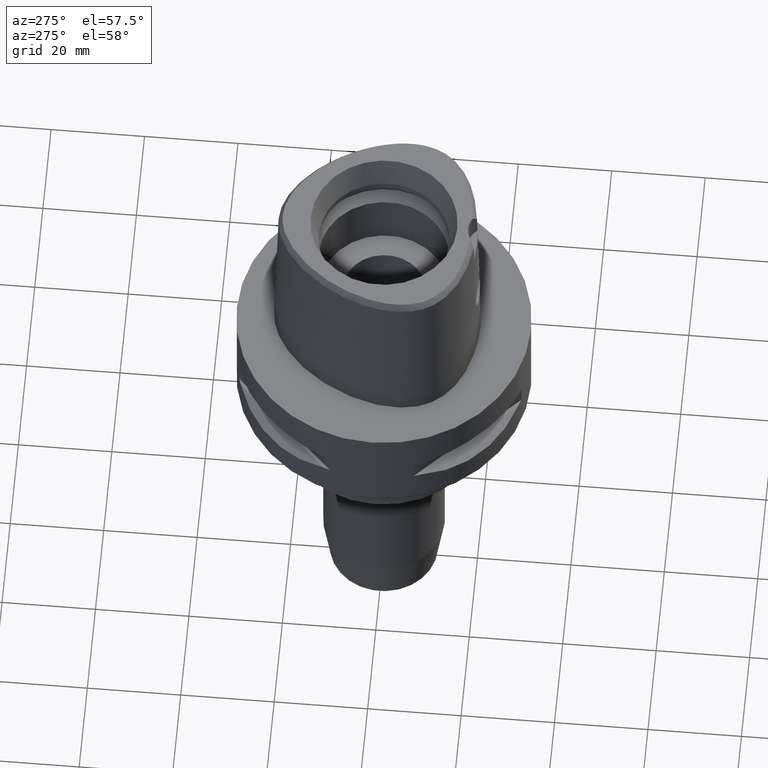
[diagram: clean part render]
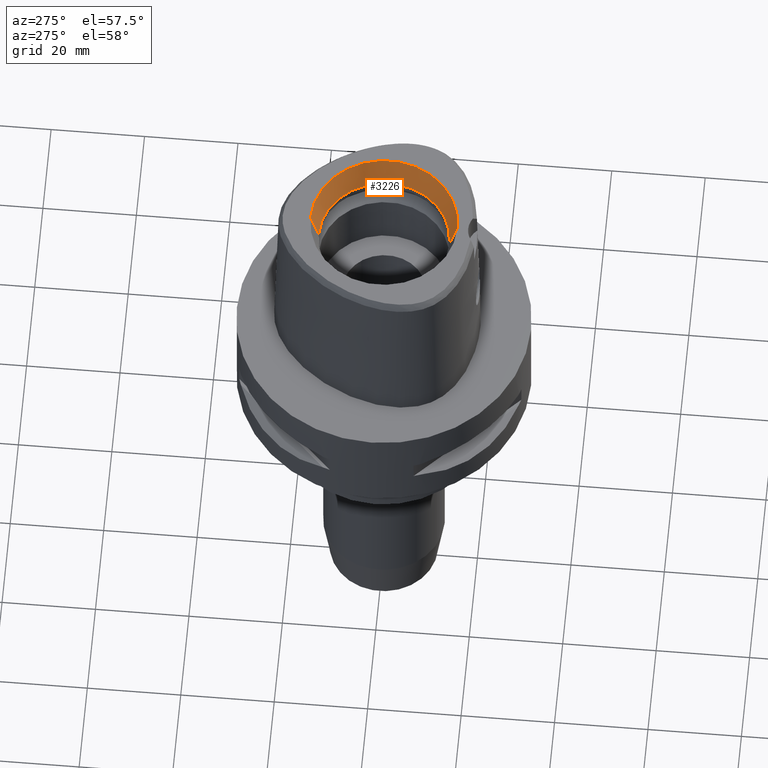
[diagram: same view with one face highlighted and labeled with its STEP entity id]
A machine part, auxiliary view. The second image highlights one B-rep face of the part: STEP entity #3226.
In plain terms, the highlighted conical surface has half-angle 15 deg.
Its self-contained STEP definition (entity closure, byte-faithful):
#128=CARTESIAN_POINT('',(0.E0,0.E0,3.8E1));
#129=DIRECTION('',(0.E0,0.E0,1.E0));
#130=DIRECTION('',(0.E0,-1.E0,0.E0));
#131=AXIS2_PLACEMENT_3D('',#128,#129,#130);
#1228=DIRECTION('',(0.E0,-2.588190451026E-1,9.659258262891E-1));
#1229=VECTOR('',#1228,6.625767554625E0);
#1230=CARTESIAN_POINT('',(0.E0,-1.4E1,3.16E1));
#1231=LINE('',#1230,#1229);
#1235=CARTESIAN_POINT('',(0.E0,0.E0,3.16E1));
#1236=DIRECTION('',(0.E0,0.E0,1.E0));
#1237=DIRECTION('',(0.E0,-1.E0,0.E0));
#1238=AXIS2_PLACEMENT_3D('',#1235,#1236,#1237);
#1243=DIRECTION('',(0.E0,2.588190451026E-1,9.659258262891E-1));
#1244=VECTOR('',#1243,6.625767554625E0);
#1245=CARTESIAN_POINT('',(0.E0,1.4E1,3.16E1));
#1246=LINE('',#1245,#1244);
#1557=CARTESIAN_POINT('',(0.E0,1.571487483156E1,3.8E1));
#1558=CARTESIAN_POINT('',(0.E0,-1.571487483156E1,3.8E1));
#1559=VERTEX_POINT('',#1557);
#1560=VERTEX_POINT('',#1558);
#1721=CARTESIAN_POINT('',(0.E0,-1.4E1,3.16E1));
#1722=VERTEX_POINT('',#1721);
#1723=CARTESIAN_POINT('',(0.E0,1.4E1,3.16E1));
#1724=VERTEX_POINT('',#1723);
#3215=CARTESIAN_POINT('',(0.E0,0.E0,3.48E1));
#3216=DIRECTION('',(0.E0,0.E0,1.E0));
#3217=DIRECTION('',(0.E0,1.E0,0.E0));
#3218=AXIS2_PLACEMENT_3D('',#3215,#3216,#3217);
#3219=CONICAL_SURFACE('',#3218,1.485743741578E1,1.5E1);
#3220=ORIENTED_EDGE('',*,*,#1742,.F.);
#3221=ORIENTED_EDGE('',*,*,#3210,.F.);
#3222=ORIENTED_EDGE('',*,*,#3183,.T.);
#3223=ORIENTED_EDGE('',*,*,#3207,.T.);
#3224=EDGE_LOOP('',(#3220,#3221,#3222,#3223));
#3225=FACE_OUTER_BOUND('',#3224,.F.);
#132=CIRCLE('',#131,1.571487483156E1);
#1239=CIRCLE('',#1238,1.4E1);
#1742=EDGE_CURVE('',#1560,#1559,#132,.T.);
#3183=EDGE_CURVE('',#1722,#1724,#1239,.T.);
#3207=EDGE_CURVE('',#1724,#1559,#1246,.T.);
#3210=EDGE_CURVE('',#1722,#1560,#1231,.T.);
#3226=ADVANCED_FACE('',(#3225),#3219,.F.);